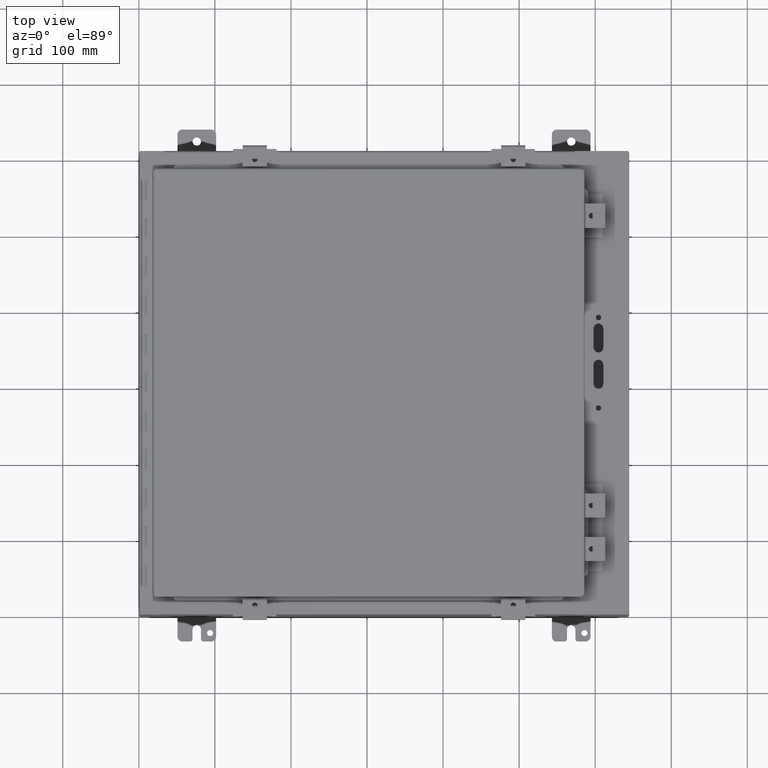
[diagram: clean part render]
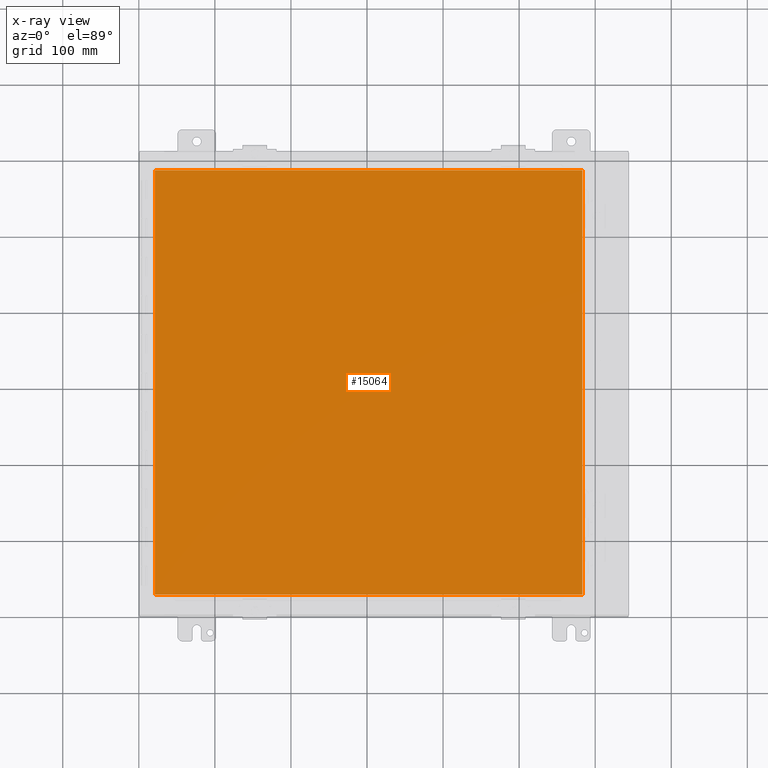
[diagram: x-ray — body ghosted, one internal face saturated and labeled with its STEP entity id]
A machine part, top view, then the same camera in x-ray: the body is ghosted and one INTERNAL B-rep face — a face not visible from any outside direction — is saturated and labeled: STEP entity #15064.
In plain terms, the highlighted planar face has unit normal (0, 0, 1).
Its self-contained STEP definition (entity closure, byte-faithful):
#898=PLANE('',#16257);
#1608=FACE_OUTER_BOUND('',#2515,.T.);
#2515=EDGE_LOOP('',(#12593,#12594,#12595,#12596));
#3889=LINE('',#24461,#5278);
#3894=LINE('',#24540,#5283);
#3902=LINE('',#24625,#5291);
#3906=LINE('',#24701,#5295);
#5278=VECTOR('',#19700,21.977);
#5283=VECTOR('',#19713,22.13325);
#5291=VECTOR('',#19731,21.977);
#5295=VECTOR('',#19743,22.13325);
#7135=VERTEX_POINT('',#24420);
#7136=VERTEX_POINT('',#24450);
#7138=VERTEX_POINT('',#24529);
#7142=VERTEX_POINT('',#24612);
#8996=EDGE_CURVE('',#7136,#7135,#3889,.T.);
#9005=EDGE_CURVE('',#7138,#7136,#3894,.T.);
#9017=EDGE_CURVE('',#7142,#7138,#3902,.T.);
#9025=EDGE_CURVE('',#7135,#7142,#3906,.T.);
#12593=ORIENTED_EDGE('',*,*,#8996,.T.);
#12594=ORIENTED_EDGE('',*,*,#9025,.T.);
#12595=ORIENTED_EDGE('',*,*,#9017,.T.);
#12596=ORIENTED_EDGE('',*,*,#9005,.T.);
#15064=ADVANCED_FACE('',(#1608),#898,.F.);
#16257=AXIS2_PLACEMENT_3D('',#24703,#19746,#19747);
#19700=DIRECTION('',(0.,-1.,0.));
#19713=DIRECTION('',(1.,0.,0.));
#19731=DIRECTION('',(-3.06287184619773E-16,1.,0.));
#19743=DIRECTION('',(-1.,0.,0.));
#19746=DIRECTION('center_axis',(0.,0.,1.));
#19747=DIRECTION('ref_axis',(0.,-1.,0.));
#24420=CARTESIAN_POINT('',(22.2385,0.105250000000001,0.));
#24450=CARTESIAN_POINT('',(22.2385,22.08225,0.));
#24461=CARTESIAN_POINT('',(22.2385,5.5995,0.));
#24529=CARTESIAN_POINT('',(0.105249999999993,22.08225,0.));
#24540=CARTESIAN_POINT('',(16.7051875,22.08225,0.));
#24612=CARTESIAN_POINT('',(0.105249999999999,0.105250000000001,0.));
#24625=CARTESIAN_POINT('',(0.105249999999994,16.588,0.));
#24701=CARTESIAN_POINT('',(5.6385625,0.105249999999998,0.));
#24703=CARTESIAN_POINT('Origin',(11.171875,11.09375,0.));